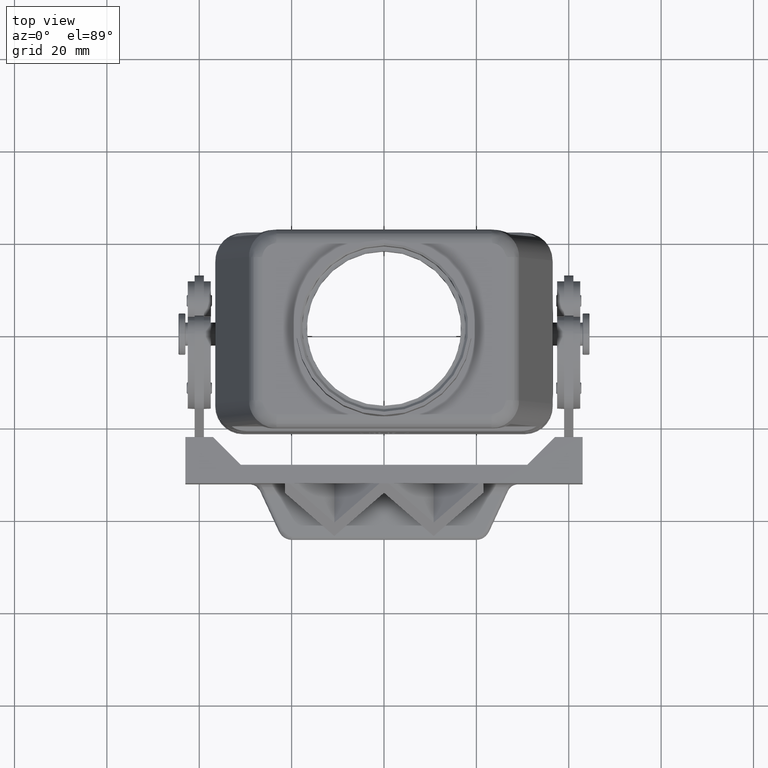
[diagram: clean part render]
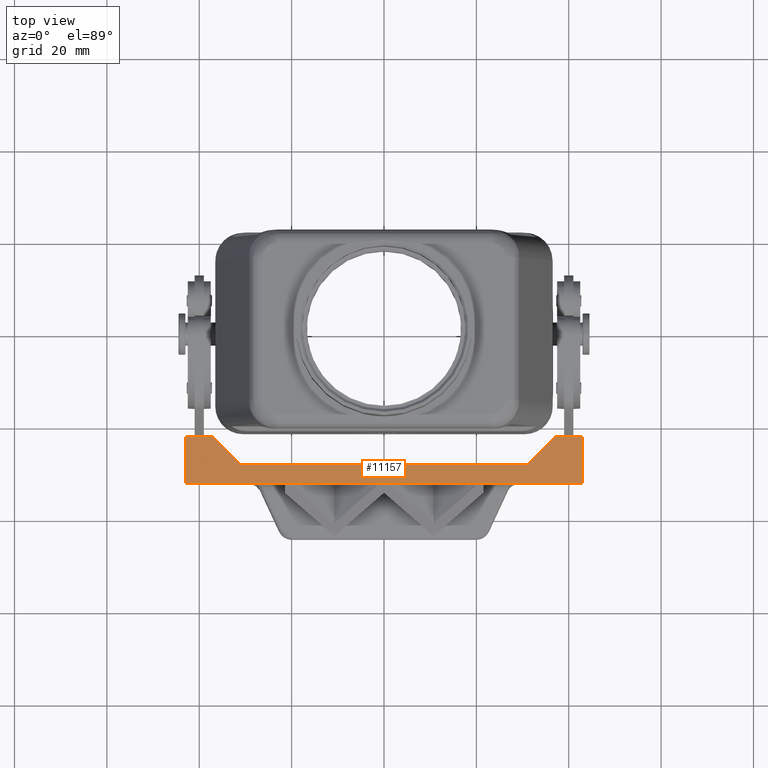
[diagram: same view with one face highlighted and labeled with its STEP entity id]
A machine part, top view. The second image highlights one B-rep face of the part: STEP entity #11157.
In plain terms, the highlighted face is a freeform B-spline surface patch.
Its self-contained STEP definition (entity closure, byte-faithful):
#10208=CARTESIAN_POINT('',(20.551672532727796,-32.049999999999997,-6.500000000000000));
#10209=VERTEX_POINT('',#10208);
#10218=CARTESIAN_POINT('',(21.500000000000004,-32.049999999999997,-6.500000000000000));
#10219=VERTEX_POINT('',#10218);
#10250=CARTESIAN_POINT('',(-20.551672532727807,-32.049999999999997,-6.500000000000000));
#10251=VERTEX_POINT('',#10250);
#10266=CARTESIAN_POINT('',(-21.500000000000007,-32.049999999999997,-6.500000000000000));
#10267=VERTEX_POINT('',#10266);
#10288=CARTESIAN_POINT('',(0.948327467272199,-32.049999999999997,-6.500000000000000));
#10289=VERTEX_POINT('',#10288);
#10298=CARTESIAN_POINT('',(-0.948327467272199,-32.049999999999997,-6.500000000000000));
#10299=VERTEX_POINT('',#10298);
#10529=CARTESIAN_POINT('',(0.948754346471121,-32.048170567939977,-6.499999999999998));
#10530=VERTEX_POINT('',#10529);
#10531=CARTESIAN_POINT('',(0.948754346471121,-32.048170567939977,-6.499999999999998));
#10532=DIRECTION('',(-0.227235531359602,-0.973839829380437,-9.455869E-013));
#10533=VECTOR('',#10532,0.001878575926787);
#10534=LINE('',#10531,#10533);
#10535=EDGE_CURVE('',#10530,#10289,#10534,.T.);
#10575=CARTESIAN_POINT('',(20.551245653528881,-32.048170567939984,-6.499999999999998));
#10576=VERTEX_POINT('',#10575);
#10583=CARTESIAN_POINT('',(20.551672532727796,-32.049999999999997,-6.500000000000000));
#10584=DIRECTION('',(-0.227235531356739,0.973839829381105,9.455869E-013));
#10585=VECTOR('',#10584,0.001878575926778);
#10586=LINE('',#10583,#10585);
#10587=EDGE_CURVE('',#10209,#10576,#10586,.T.);
#10614=CARTESIAN_POINT('',(-20.551245653528881,-32.048170567939984,-6.499999999999998));
#10615=VERTEX_POINT('',#10614);
#10616=CARTESIAN_POINT('',(-20.551245653528881,-32.048170567939984,-6.499999999999998));
#10617=DIRECTION('',(-0.227235531362120,-0.973839829379850,-9.455869E-013));
#10618=VECTOR('',#10617,0.001878575926781);
#10619=LINE('',#10616,#10618);
#10620=EDGE_CURVE('',#10615,#10251,#10619,.T.);
#10637=CARTESIAN_POINT('',(21.500000000000007,-32.048170567939977,-6.499999999999998));
#10638=VERTEX_POINT('',#10637);
#10645=CARTESIAN_POINT('',(20.551245653528881,-32.048170567939984,-6.499999999999998));
#10646=DIRECTION('',(1.0,0.0,0.0));
#10647=VECTOR('',#10646,0.948754346471127);
#10648=LINE('',#10645,#10647);
#10649=EDGE_CURVE('',#10576,#10638,#10648,.T.);
#10684=CARTESIAN_POINT('',(21.500000000000007,-32.048170567939977,-6.499999999999998));
#10685=DIRECTION('',(-1.941976E-012,-1.0,-9.709881E-013));
#10686=VECTOR('',#10685,0.001829432060021);
#10687=LINE('',#10684,#10686);
#10688=EDGE_CURVE('',#10638,#10219,#10687,.T.);
#10973=CARTESIAN_POINT('',(0.948327467272199,-32.049999999999997,-6.500000000000000));
#10974=DIRECTION('',(1.0,0.0,0.0));
#10975=VECTOR('',#10974,19.603345065455599);
#10976=LINE('',#10973,#10975);
#10977=EDGE_CURVE('',#10289,#10209,#10976,.T.);
#11029=CARTESIAN_POINT('',(43.000000000000007,-32.049999999999997,-6.499999999999998));
#11030=VERTEX_POINT('',#11029);
#11037=CARTESIAN_POINT('',(21.500000000000004,-32.049999999999997,-6.500000000000000));
#11038=DIRECTION('',(1.0,0.0,0.0));
#11039=VECTOR('',#11038,21.500000000000004);
#11040=LINE('',#11037,#11039);
#11041=EDGE_CURVE('',#10219,#11030,#11040,.T.);
#11047=CARTESIAN_POINT('',(43.0,-22.050000000000001,-6.499999999999998));
#11048=CARTESIAN_POINT('',(-43.0,-22.050000000000001,-6.499999999999998));
#11049=CARTESIAN_POINT('',(43.0,-32.050000000000004,-6.499999999999998));
#11050=CARTESIAN_POINT('',(-43.0,-32.050000000000011,-6.499999999999998));
#11051=B_SPLINE_SURFACE_WITH_KNOTS('',1,1,((#11047,#11049),(#11048,#11050)),.UNSPECIFIED.,.F.,.F.,.U.,(2,2),(2,2),(0.0,86.0),(0.0,10.000000000000004),.UNSPECIFIED.);
#11052=CARTESIAN_POINT('',(-0.948754346471121,-32.048170567939977,-6.499999999999998));
#11053=VERTEX_POINT('',#11052);
#11054=CARTESIAN_POINT('',(-0.948754346471121,-32.048170567939977,-6.499999999999998));
#11055=DIRECTION('',(1.0,0.0,0.0));
#11056=VECTOR('',#11055,1.897508692942243);
#11057=LINE('',#11054,#11056);
#11058=EDGE_CURVE('',#11053,#10530,#11057,.T.);
#11059=ORIENTED_EDGE('',*,*,#11058,.T.);
#11060=ORIENTED_EDGE('',*,*,#10535,.T.);
#11061=ORIENTED_EDGE('',*,*,#10977,.T.);
#11062=ORIENTED_EDGE('',*,*,#10587,.T.);
#11063=ORIENTED_EDGE('',*,*,#10649,.T.);
#11064=ORIENTED_EDGE('',*,*,#10688,.T.);
#11065=ORIENTED_EDGE('',*,*,#11041,.T.);
#11066=CARTESIAN_POINT('',(43.000000000000007,-22.050000000000001,-6.499999999999998));
#11067=VERTEX_POINT('',#11066);
#11068=CARTESIAN_POINT('',(43.000000000000007,-22.050000000000001,-6.499999999999998));
#11069=DIRECTION('',(0.0,-1.0,0.0));
#11070=VECTOR('',#11069,9.999999999999996);
#11071=LINE('',#11068,#11070);
#11072=EDGE_CURVE('',#11067,#11030,#11071,.T.);
#11073=ORIENTED_EDGE('',*,*,#11072,.F.);
#11074=CARTESIAN_POINT('',(37.000000000000007,-22.050000000000001,-6.499999999999998));
#11075=VERTEX_POINT('',#11074);
#11076=CARTESIAN_POINT('',(37.000000000000007,-22.050000000000001,-6.499999999999998));
#11077=DIRECTION('',(1.0,0.0,0.0));
#11078=VECTOR('',#11077,6.0);
#11079=LINE('',#11076,#11078);
#11080=EDGE_CURVE('',#11075,#11067,#11079,.T.);
#11081=ORIENTED_EDGE('',*,*,#11080,.F.);
#11082=CARTESIAN_POINT('',(31.000000000000007,-28.049999999999997,-6.499999999999998));
#11083=VERTEX_POINT('',#11082);
#11084=CARTESIAN_POINT('',(31.000000000000007,-28.049999999999997,-6.499999999999998));
#11085=DIRECTION('',(0.707106781186548,0.707106781186547,0.0));
#11086=VECTOR('',#11085,8.485281374238568);
#11087=LINE('',#11084,#11086);
#11088=EDGE_CURVE('',#11083,#11075,#11087,.T.);
#11089=ORIENTED_EDGE('',*,*,#11088,.F.);
#11090=CARTESIAN_POINT('',(-31.000000000000007,-28.049999999999997,-6.499999999999998));
#11091=VERTEX_POINT('',#11090);
#11092=CARTESIAN_POINT('',(-31.000000000000007,-28.049999999999997,-6.499999999999998));
#11093=DIRECTION('',(1.0,0.0,0.0));
#11094=VECTOR('',#11093,62.000000000000014);
#11095=LINE('',#11092,#11094);
#11096=EDGE_CURVE('',#11091,#11083,#11095,.T.);
#11097=ORIENTED_EDGE('',*,*,#11096,.F.);
#11098=CARTESIAN_POINT('',(-37.000000000000007,-22.050000000000001,-6.499999999999998));
#11099=VERTEX_POINT('',#11098);
#11100=CARTESIAN_POINT('',(-31.000000000000007,-28.049999999999997,-6.499999999999998));
#11101=DIRECTION('',(-0.707106781186548,0.707106781186547,0.0));
#11102=VECTOR('',#11101,8.485281374238568);
#11103=LINE('',#11100,#11102);
#11104=EDGE_CURVE('',#11091,#11099,#11103,.T.);
#11105=ORIENTED_EDGE('',*,*,#11104,.T.);
#11106=CARTESIAN_POINT('',(-43.000000000000007,-22.050000000000001,-6.499999999999998));
#11107=VERTEX_POINT('',#11106);
#11108=CARTESIAN_POINT('',(-37.000000000000007,-22.050000000000001,-6.499999999999998));
#11109=DIRECTION('',(-1.0,0.0,0.0));
#11110=VECTOR('',#11109,6.0);
#11111=LINE('',#11108,#11110);
#11112=EDGE_CURVE('',#11099,#11107,#11111,.T.);
#11113=ORIENTED_EDGE('',*,*,#11112,.T.);
#11114=CARTESIAN_POINT('',(-43.000000000000007,-32.049999999999997,-6.499999999999998));
#11115=VERTEX_POINT('',#11114);
#11116=CARTESIAN_POINT('',(-43.000000000000007,-22.050000000000001,-6.499999999999998));
#11117=DIRECTION('',(0.0,-1.0,0.0));
#11118=VECTOR('',#11117,9.999999999999996);
#11119=LINE('',#11116,#11118);
#11120=EDGE_CURVE('',#11107,#11115,#11119,.T.);
#11121=ORIENTED_EDGE('',*,*,#11120,.T.);
#11122=CARTESIAN_POINT('',(-43.000000000000007,-32.049999999999997,-6.499999999999998));
#11123=DIRECTION('',(1.0,0.0,0.0));
#11124=VECTOR('',#11123,21.500000000000000);
#11125=LINE('',#11122,#11124);
#11126=EDGE_CURVE('',#11115,#10267,#11125,.T.);
#11127=ORIENTED_EDGE('',*,*,#11126,.T.);
#11128=CARTESIAN_POINT('',(-21.500000000000007,-32.048170567939977,-6.499999999999998));
#11129=VERTEX_POINT('',#11128);
#11130=CARTESIAN_POINT('',(-21.500000000000007,-32.049999999999997,-6.500000000000000));
#11131=DIRECTION('',(0.0,1.0,9.709881E-013));
#11132=VECTOR('',#11131,0.001829432060021);
#11133=LINE('',#11130,#11132);
#11134=EDGE_CURVE('',#10267,#11129,#11133,.T.);
#11135=ORIENTED_EDGE('',*,*,#11134,.T.);
#11136=CARTESIAN_POINT('',(-21.500000000000007,-32.048170567939977,-6.499999999999998));
#11137=DIRECTION('',(1.0,0.0,0.0));
#11138=VECTOR('',#11137,0.948754346471127);
#11139=LINE('',#11136,#11138);
#11140=EDGE_CURVE('',#11129,#10615,#11139,.T.);
#11141=ORIENTED_EDGE('',*,*,#11140,.T.);
#11142=ORIENTED_EDGE('',*,*,#10620,.T.);
#11143=CARTESIAN_POINT('',(-20.551672532727807,-32.049999999999997,-6.500000000000000));
#11144=DIRECTION('',(1.0,0.0,0.0));
#11145=VECTOR('',#11144,19.603345065455606);
#11146=LINE('',#11143,#11145);
#11147=EDGE_CURVE('',#10251,#10299,#11146,.T.);
#11148=ORIENTED_EDGE('',*,*,#11147,.T.);
#11149=CARTESIAN_POINT('',(-0.948327467272199,-32.049999999999997,-6.500000000000000));
#11150=DIRECTION('',(-0.227235531359602,0.973839829380437,9.455869E-013));
#11151=VECTOR('',#11150,0.001878575926787);
#11152=LINE('',#11149,#11151);
#11153=EDGE_CURVE('',#10299,#11053,#11152,.T.);
#11154=ORIENTED_EDGE('',*,*,#11153,.T.);
#11155=EDGE_LOOP('',(#11059,#11060,#11061,#11062,#11063,#11064,#11065,#11073,#11081,#11089,#11097,#11105,#11113,#11121,#11127,#11135,#11141,#11142,#11148,#11154));
#11156=FACE_OUTER_BOUND('',#11155,.T.);
#11157=ADVANCED_FACE('',(#11156),#11051,.T.);